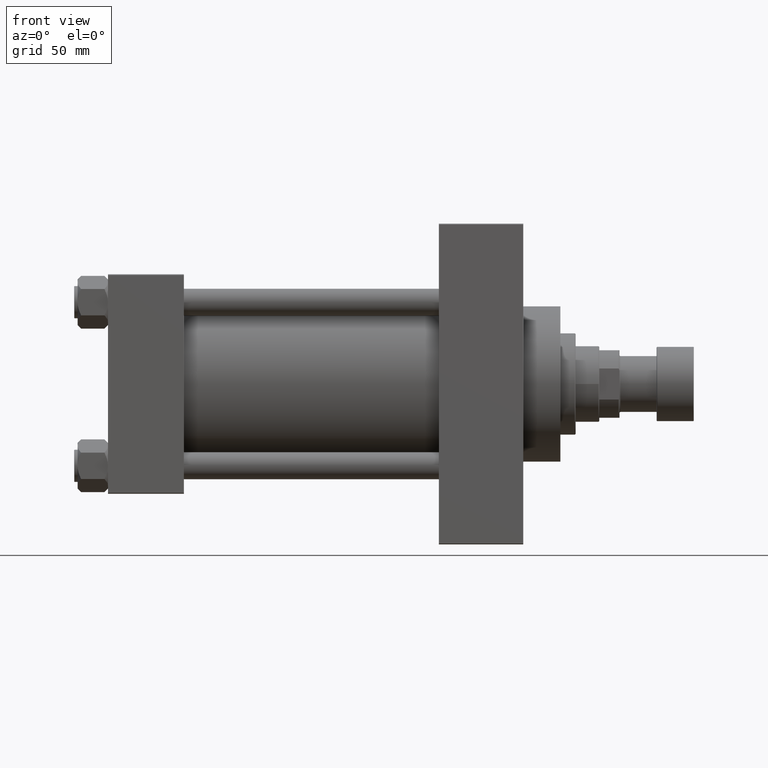
[diagram: clean part render]
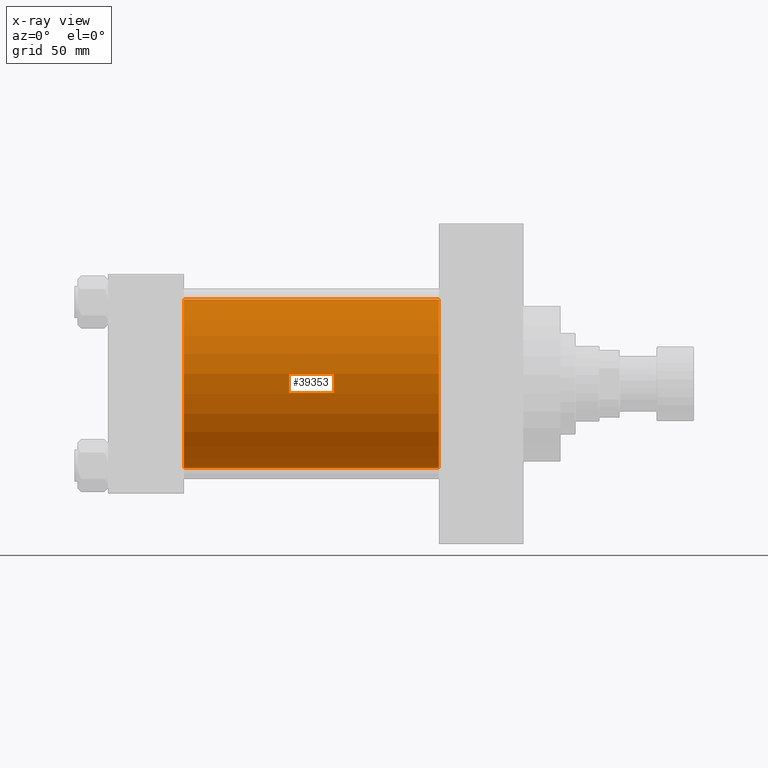
[diagram: x-ray — body ghosted, one internal face saturated and labeled with its STEP entity id]
A machine part, front view, then the same camera in x-ray: the body is ghosted and one INTERNAL B-rep face — a face not visible from any outside direction — is saturated and labeled: STEP entity #39353.
In plain terms, the highlighted cylindrical surface (partial cylindrical patch) has radius 50 mm, axis along (-1, -0, -0).
Its self-contained STEP definition (entity closure, byte-faithful):
#3616 = VERTEX_POINT ( 'NONE', #4091 ) ;
#4091 = CARTESIAN_POINT ( 'NONE',  ( 196.0000000000000000, 3.521148781771555838E-15, -50.00000000000000000 ) ) ;
#5589 = LINE ( 'NONE', #16998, #31961 ) ;
#6980 = VERTEX_POINT ( 'NONE', #37657 ) ;
#7873 = EDGE_CURVE ( 'NONE', #32368, #3616, #18464, .T. ) ;
#7928 = DIRECTION ( 'NONE',  ( 0.000000000000000000, 0.000000000000000000, -1.000000000000000000 ) ) ;
#8461 = ORIENTED_EDGE ( 'NONE', *, *, #25178, .F. ) ;
#10403 = DIRECTION ( 'NONE',  ( 0.000000000000000000, 0.000000000000000000, -1.000000000000000000 ) ) ;
#13229 = CARTESIAN_POINT ( 'NONE',  ( 45.00000000000000000, -2.602085213965210642E-15, 50.00000000000000000 ) ) ;
#16998 = CARTESIAN_POINT ( 'NONE',  ( 196.0000000000000000, 3.521148781771555838E-15, -50.00000000000000000 ) ) ;
#17844 = CARTESIAN_POINT ( 'NONE',  ( 196.0000000000000000, -2.602085213965210642E-15, 50.00000000000000000 ) ) ;
#18464 = CIRCLE ( 'NONE', #34016, 50.00000000000000000 ) ;
#19249 = EDGE_CURVE ( 'NONE', #3616, #6980, #5589, .T. ) ;
#19568 = VERTEX_POINT ( 'NONE', #13229 ) ;
#20456 = AXIS2_PLACEMENT_3D ( 'NONE', #25955, #43740, #10403 ) ;
#21989 = FACE_OUTER_BOUND ( 'NONE', #26368, .T. ) ;
#22740 = CARTESIAN_POINT ( 'NONE',  ( 196.0000000000000000, -2.602085213965210642E-15, 50.00000000000000000 ) ) ;
#24789 = EDGE_CURVE ( 'NONE', #19568, #6980, #35225, .T. ) ;
#25178 = EDGE_CURVE ( 'NONE', #32368, #19568, #46262, .T. ) ;
#25636 = DIRECTION ( 'NONE',  ( -1.000000000000000000, -0.000000000000000000, -0.000000000000000000 ) ) ;
#25955 = CARTESIAN_POINT ( 'NONE',  ( 45.00000000000000000, -2.602085213965210642E-15, 0.000000000000000000 ) ) ;
#26368 = EDGE_LOOP ( 'NONE', ( #43284, #36944, #39259, #8461 ) ) ;
#27227 = DIRECTION ( 'NONE',  ( -1.000000000000000000, -0.000000000000000000, -0.000000000000000000 ) ) ;
#27283 = DIRECTION ( 'NONE',  ( -1.000000000000000000, -0.000000000000000000, -0.000000000000000000 ) ) ;
#29531 = CARTESIAN_POINT ( 'NONE',  ( 196.0000000000000000, -2.602085213965210642E-15, 0.000000000000000000 ) ) ;
#29808 = DIRECTION ( 'NONE',  ( 1.000000000000000000, 0.000000000000000000, 0.000000000000000000 ) ) ;
#31961 = VECTOR ( 'NONE', #27227, 1000.000000000000000 ) ;
#32368 = VERTEX_POINT ( 'NONE', #17844 ) ;
#33473 = CARTESIAN_POINT ( 'NONE',  ( 196.0000000000000000, -2.602085213965210642E-15, 0.000000000000000000 ) ) ;
#34016 = AXIS2_PLACEMENT_3D ( 'NONE', #33473, #29808, #7928 ) ;
#35225 = CIRCLE ( 'NONE', #20456, 50.00000000000000000 ) ;
#36944 = ORIENTED_EDGE ( 'NONE', *, *, #19249, .T. ) ;
#37657 = CARTESIAN_POINT ( 'NONE',  ( 45.00000000000000000, 3.521148781771555838E-15, -50.00000000000000000 ) ) ;
#39259 = ORIENTED_EDGE ( 'NONE', *, *, #24789, .F. ) ;
#39353 = ADVANCED_FACE ( 'NONE', ( #21989 ), #41211, .F. ) ;
#40250 = DIRECTION ( 'NONE',  ( 0.000000000000000000, 0.000000000000000000, 1.000000000000000000 ) ) ;
#41211 = CYLINDRICAL_SURFACE ( 'NONE', #43296, 50.00000000000000000 ) ;
#42996 = VECTOR ( 'NONE', #27283, 1000.000000000000000 ) ;
#43284 = ORIENTED_EDGE ( 'NONE', *, *, #7873, .T. ) ;
#43296 = AXIS2_PLACEMENT_3D ( 'NONE', #29531, #25636, #40250 ) ;
#43740 = DIRECTION ( 'NONE',  ( 1.000000000000000000, 0.000000000000000000, 0.000000000000000000 ) ) ;
#46262 = LINE ( 'NONE', #22740, #42996 ) ;